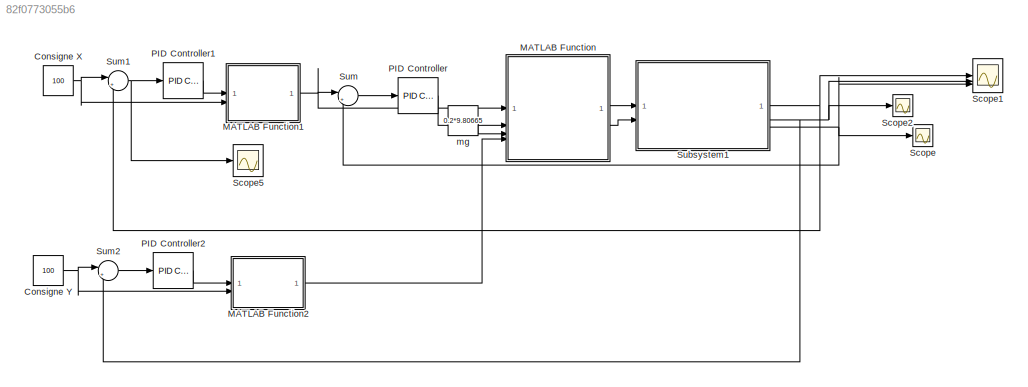
MODEL slx_82f0773055b6
KIND model
CONFIG AbsTol = 1e-3
CONFIG EnableMultiTasking = on
CONFIG FixedStep = auto
CONFIG MaxStep = auto
CONFIG MinStep = auto
CONFIG RelTol = 1e-3
CONFIG SampleTimeConstraint = Unconstrained
CONFIG SolverName = VariableStepAuto
CONFIG StartTime = 0.0
CONFIG StopTime = 60
BLOCK [Constant] Consigne X
  Value = 100
BLOCK [Constant] Consigne Y
  Value = 100
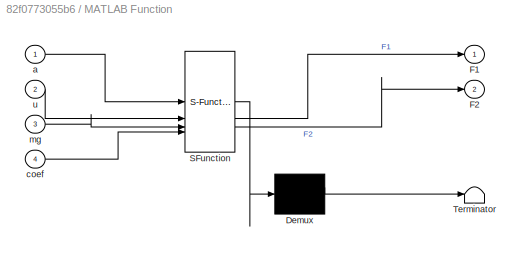
BLOCK [SubSystem] MATLAB Function
  ErrorFcn = Stateflow.Translate.translate
  PermitHierarchicalResolution = ExplicitOnly
  SFBlockType = MATLAB Function
  TreatAsAtomicUnit = on
BLOCK [Demux] MATLAB Function/ Demux 
  Outputs = 1
BLOCK [S-Function] MATLAB Function/ SFunction 
  EnableBusSupport = on
  FunctionName = sf_sfun
  PortCounts = [4 3]
  SFcnIsStateOwnerBlock = off
  SFunctionDeploymentMode = off
  Tag = Stateflow S-Function 2
BLOCK [Terminator] MATLAB Function/ Terminator 
BLOCK [Outport] MATLAB Function/F1
BLOCK [Outport] MATLAB Function/F2
  Port = 2
BLOCK [Inport] MATLAB Function/a
BLOCK [Inport] MATLAB Function/coef
  Port = 4
BLOCK [Inport] MATLAB Function/mg
  Port = 3
BLOCK [Inport] MATLAB Function/u
  Port = 2
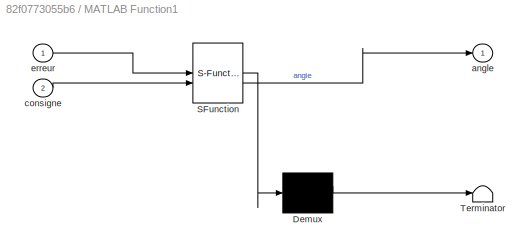
BLOCK [SubSystem] MATLAB Function1
  ErrorFcn = Stateflow.Translate.translate
  PermitHierarchicalResolution = ExplicitOnly
  SFBlockType = MATLAB Function
  TreatAsAtomicUnit = on
BLOCK [Demux] MATLAB Function1/ Demux 
  Outputs = 1
BLOCK [S-Function] MATLAB Function1/ SFunction 
  EnableBusSupport = on
  FunctionName = sf_sfun
  PortCounts = [2 2]
  SFcnIsStateOwnerBlock = off
  SFunctionDeploymentMode = off
  Tag = Stateflow S-Function 1
BLOCK [Terminator] MATLAB Function1/ Terminator 
BLOCK [Outport] MATLAB Function1/angle
BLOCK [Inport] MATLAB Function1/consigne
  Port = 2
BLOCK [Inport] MATLAB Function1/erreur
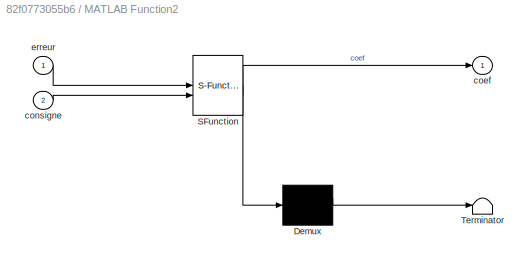
BLOCK [SubSystem] MATLAB Function2
  ErrorFcn = Stateflow.Translate.translate
  PermitHierarchicalResolution = ExplicitOnly
  SFBlockType = MATLAB Function
  TreatAsAtomicUnit = on
BLOCK [Demux] MATLAB Function2/ Demux 
  Outputs = 1
BLOCK [S-Function] MATLAB Function2/ SFunction 
  EnableBusSupport = on
  FunctionName = sf_sfun
  PortCounts = [2 2]
  SFcnIsStateOwnerBlock = off
  SFunctionDeploymentMode = off
  Tag = Stateflow S-Function 3
BLOCK [Terminator] MATLAB Function2/ Terminator 
BLOCK [Outport] MATLAB Function2/coef
BLOCK [Inport] MATLAB Function2/consigne
  Port = 2
BLOCK [Inport] MATLAB Function2/erreur
BLOCK [Reference] PID Controller  REF=slpidlib/PID Controller
  LibrarySourceBlock = simulink/Continuous/PID Controller
  SourceBlock = slpidlib/PID Controller
  SourceType = PID 1dof
BLOCK [Reference] PID Controller1  REF=slpidlib/PID Controller
  LibrarySourceBlock = simulink/Continuous/PID Controller
  SourceBlock = slpidlib/PID Controller
  SourceType = PID 1dof
BLOCK [Reference] PID Controller2  REF=slpidlib/PID Controller
  LibrarySourceBlock = simulink/Continuous/PID Controller
  SourceBlock = slpidlib/PID Controller
  SourceType = PID 1dof
BLOCK [Scope] Scope
  Floating = off
  NumInputPorts = 1
  ScopeSpecificationString = Simulink.scopes.TimeScopeBlockCfg('CurrentConfiguration', extmgr.ConfigurationSet(extmgr.Configuration('Core','General UI',true),extmgr.Configuration('Core','Source UI',true),extmgr.Configuration('Sources','WiredSimulink',true),extmgr.Configuration('Visuals','Time Domain',true,'SerializedDisplays',{struct('MinYLimReal','-0.19937','MaxYLimReal','1.79437','YLabelReal','','MinYLimMag','0.00000','MaxY...<+1505ch>
BLOCK [Scope] Scope1
  Floating = off
  NumInputPorts = 3
  ScopeSpecificationString = Simulink.scopes.TimeScopeBlockCfg('CurrentConfiguration', extmgr.ConfigurationSet(extmgr.Configuration('Core','General UI',true),extmgr.Configuration('Core','Source UI',true),extmgr.Configuration('Sources','WiredSimulink',true,'DataLoggingVariableName','ScopeData1'),extmgr.Configuration('Visuals','Time Domain',true,'SerializedDisplays',{struct('MinYLimReal','-28.29286','MaxYLimReal','114.24409','Y...<+1650ch>
BLOCK [Scope] Scope2
  Floating = off
  NumInputPorts = 1
  ScopeSpecificationString = Simulink.scopes.TimeScopeBlockCfg('CurrentConfiguration', extmgr.ConfigurationSet(extmgr.Configuration('Core','General UI',true),extmgr.Configuration('Core','Source UI',true),extmgr.Configuration('Sources','WiredSimulink',true,'DataLoggingVariableName','ScopeData1'),extmgr.Configuration('Visuals','Time Domain',true,'SerializedDisplays',{struct('MinYLimReal','-0.11723','MaxYLimReal','1.023','YLabel...<+1822ch>
BLOCK [Scope] Scope5
  Floating = off
  NumInputPorts = 1
  ScopeSpecificationString = Simulink.scopes.TimeScopeBlockCfg('CurrentConfiguration', extmgr.ConfigurationSet(extmgr.Configuration('Core','General UI',true),extmgr.Configuration('Core','Source UI',true),extmgr.Configuration('Sources','WiredSimulink',true,'DataLoggingVariableName','ScopeData2'),extmgr.Configuration('Visuals','Time Domain',true,'SerializedDisplays',{struct('MinYLimReal','-1672.95291','MaxYLimReal','196.99568',...<+1597ch>
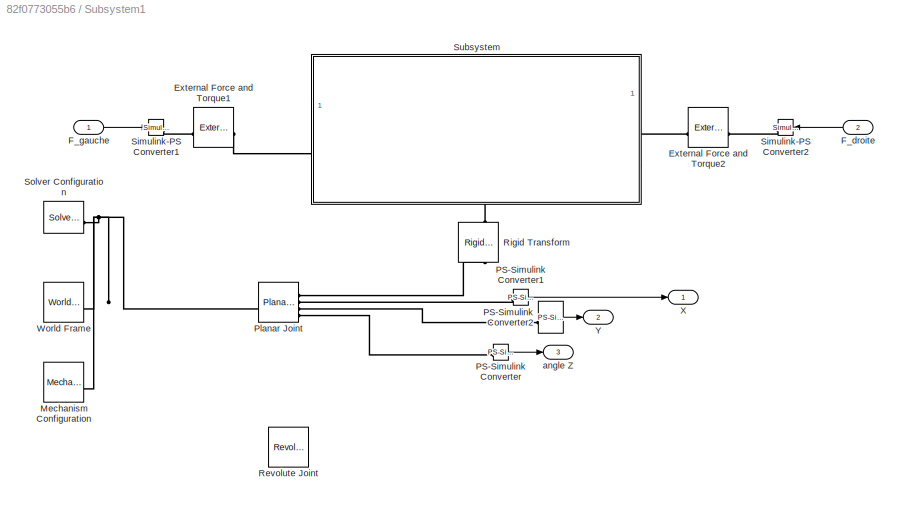
BLOCK [SubSystem] Subsystem1
BLOCK [Reference] Subsystem1/External Force and Torque1  REF=sm_lib/Forces and
Torques/External Force
and Torque
  SourceBlock = sm_lib/Forces and\nTorques/External Force\nand Torque
  SourceType = External Force\nand Torque
BLOCK [Reference] Subsystem1/External Force and Torque2  REF=sm_lib/Forces and
Torques/External Force
and Torque
  SourceBlock = sm_lib/Forces and\nTorques/External Force\nand Torque
  SourceType = External Force\nand Torque
BLOCK [Inport] Subsystem1/F_droite
  Port = 2
BLOCK [Inport] Subsystem1/F_gauche
BLOCK [Reference] Subsystem1/Mechanism Configuration  REF=sm_lib/Utilities/Mechanism
Configuration
  SourceBlock = sm_lib/Utilities/Mechanism\nConfiguration
  SourceType = Mechanism\nConfiguration
BLOCK [Reference] Subsystem1/PS-Simulink Converter  REF=nesl_utility/PS-Simulink
Converter
  SourceBlock = nesl_utility/PS-Simulink\nConverter
  SourceType = PS-Simulink\nConverter
BLOCK [Reference] Subsystem1/PS-Simulink Converter1  REF=nesl_utility/PS-Simulink
Converter
  SourceBlock = nesl_utility/PS-Simulink\nConverter
  SourceType = PS-Simulink\nConverter
BLOCK [Reference] Subsystem1/PS-Simulink Converter2  REF=nesl_utility/PS-Simulink
Converter
  SourceBlock = nesl_utility/PS-Simulink\nConverter
  SourceType = PS-Simulink\nConverter
BLOCK [Reference] Subsystem1/Planar Joint  REF=sm_lib/Joints/Planar Joint
  SourceBlock = sm_lib/Joints/Planar Joint
  SourceType = Planar Joint
BLOCK [Reference] Subsystem1/Revolute Joint  REF=sm_lib/Joints/Revolute Joint
  Commented = on
  SourceBlock = sm_lib/Joints/Revolute Joint
  SourceType = Revolute Joint
BLOCK [Reference] Subsystem1/Rigid Transform  REF=sm_lib/Frames and
Transforms/Rigid
Transform
  NameLocation = right
  SourceBlock = sm_lib/Frames and\nTransforms/Rigid\nTransform
  SourceType = Rigid\nTransform
BLOCK [Reference] Subsystem1/Simulink-PS Converter1  REF=nesl_utility/Simulink-PS
Converter
  SourceBlock = nesl_utility/Simulink-PS\nConverter
  SourceType = Simulink-PS\nConverter
BLOCK [Reference] Subsystem1/Simulink-PS Converter2  REF=nesl_utility/Simulink-PS
Converter
  SourceBlock = nesl_utility/Simulink-PS\nConverter
  SourceType = Simulink-PS\nConverter
BLOCK [Reference] Subsystem1/Solver Configuration  REF=nesl_utility/Solver
Configuration
  SourceBlock = nesl_utility/Solver\nConfiguration
  SourceType = Solver\nConfiguration
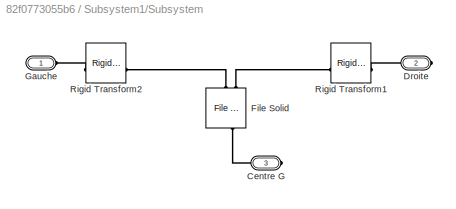
BLOCK [SubSystem] Subsystem1/Subsystem
  PortSchema = {"entries":[{"content":{"sides":[{"content":{"connectorIds":["LConn1"]},"type":"ConnectorPlacement.EquallySpacedRectSide","uuid":"4e6eadbb-0fa2-4fa1-8398-65010395ec03"},{"content":{"connectorIds":["RConn1"],"side":"RIGHT"},"type":"ConnectorPlacement.EquallySpacedRectSide","uuid":"83dee805-4883-4947-adf2-1c0e53e04d8d"},{"content":{"side":"TOP"},"type":"ConnectorPlacement.EquallySpacedRectSide","uui...<+379ch>
BLOCK [PMIOPort] Subsystem1/Subsystem/Centre G
  Port = 3
  Side = Right
BLOCK [PMIOPort] Subsystem1/Subsystem/Droite
  Port = 2
  Side = Right
BLOCK [Reference] Subsystem1/Subsystem/File Solid  REF=sm_lib/Body Elements/File Solid
  NameLocation = right
  SourceBlock = sm_lib/Body Elements/File Solid
  SourceType = File Solid
BLOCK [PMIOPort] Subsystem1/Subsystem/Gauche
  Side = Left
BLOCK [Reference] Subsystem1/Subsystem/Rigid Transform1  REF=sm_lib/Frames and
Transforms/Rigid
Transform
  NameLocation = top
  SourceBlock = sm_lib/Frames and\nTransforms/Rigid\nTransform
  SourceType = Rigid\nTransform
BLOCK [Reference] Subsystem1/Subsystem/Rigid Transform2  REF=sm_lib/Frames and
Transforms/Rigid
Transform
  SourceBlock = sm_lib/Frames and\nTransforms/Rigid\nTransform
  SourceType = Rigid\nTransform
BLOCK [Reference] Subsystem1/World Frame  REF=sm_lib/Frames and
Transforms/World Frame
  SourceBlock = sm_lib/Frames and\nTransforms/World Frame
  SourceType = World Frame
BLOCK [Outport] Subsystem1/X
BLOCK [Outport] Subsystem1/Y
  Port = 2
BLOCK [Outport] Subsystem1/angle Z
  Port = 3
BLOCK [Sum] Sum
  Inputs = |+-
BLOCK [Sum] Sum1
  Inputs = |+-
BLOCK [Sum] Sum2
  Inputs = |+-
BLOCK [Constant] mg
  Value = 0.2*9.80665
NET Consigne X:1 -> MATLAB Function1:2, Sum1:1
NET Consigne Y:1 -> MATLAB Function2:2, Sum2:1
NET MATLAB Function1:1 -> MATLAB Function:1, Sum:1
LINE MATLAB Function2:1 -> MATLAB Function:4
LINE MATLAB Function:1 -> Subsystem1:1
LINE MATLAB Function:2 -> Subsystem1:2
LINE PID Controller1:1 -> MATLAB Function1:1
LINE PID Controller2:1 -> MATLAB Function2:1
LINE PID Controller:1 -> MATLAB Function:2
LINE Subsystem1/F_droite:1 -> Subsystem1/Simulink-PS Converter2:1
LINE Subsystem1/F_gauche:1 -> Subsystem1/Simulink-PS Converter1:1
LINE Subsystem1/PS-Simulink Converter1:1 -> Subsystem1/X:1
LINE Subsystem1/PS-Simulink Converter2:1 -> Subsystem1/Y:1
LINE Subsystem1/PS-Simulink Converter:1 -> Subsystem1/angle Z:1
NET Subsystem1:1 -> Scope1:1, Sum1:2
NET Subsystem1:2 -> Scope1:2, Scope2:1, Sum2:2
NET Subsystem1:3 -> Scope1:3, Scope:1, Sum:2
NET Sum1:1 -> PID Controller1:1, Scope5:1
LINE Sum2:1 -> PID Controller2:1
LINE Sum:1 -> PID Controller:1
LINE mg:1 -> MATLAB Function:3
PLINE Subsystem1/External Force and Torque1:LConn1 -- Subsystem1/Simulink-PS Converter1:RConn1
PLINE Subsystem1/External Force and Torque1:RConn1 -- Subsystem1/Subsystem:LConn1
PLINE Subsystem1/External Force and Torque2:LConn1 -- Subsystem1/Simulink-PS Converter2:RConn1
PLINE Subsystem1/External Force and Torque2:RConn1 -- Subsystem1/Subsystem:RConn1
PNET net1: Subsystem1/Mechanism Configuration:RConn1 -- Subsystem1/Planar Joint:LConn1 -- Subsystem1/Solver Configuration:RConn1 -- Subsystem1/World Frame:RConn1
PLINE Subsystem1/PS-Simulink Converter1:LConn1 -- Subsystem1/Planar Joint:RConn2
PLINE Subsystem1/PS-Simulink Converter2:LConn1 -- Subsystem1/Planar Joint:RConn3
PLINE Subsystem1/PS-Simulink Converter:LConn1 -- Subsystem1/Planar Joint:RConn4
PLINE Subsystem1/Planar Joint:RConn1 -- Subsystem1/Rigid Transform:LConn1
PLINE Subsystem1/Rigid Transform:RConn1 -- Subsystem1/Subsystem:RConn2
PLINE Subsystem1/Subsystem/Centre G:RConn1 -- Subsystem1/Subsystem/File Solid:RConn1
PLINE Subsystem1/Subsystem/Droite:RConn1 -- Subsystem1/Subsystem/Rigid Transform1:LConn1
PLINE Subsystem1/Subsystem/File Solid:LConn1 -- Subsystem1/Subsystem/Rigid Transform2:RConn1
PLINE Subsystem1/Subsystem/File Solid:LConn2 -- Subsystem1/Subsystem/Rigid Transform1:RConn1
PLINE Subsystem1/Subsystem/Gauche:RConn1 -- Subsystem1/Subsystem/Rigid Transform2:LConn1
note: NET lines group one-source signal fan-out (src -> all destinations, sorted); 1:1 wires keep LINE; PNET lines group multi-terminal physical nets as a canonical sorted terminal list (undirected conserving connections); 2-terminal nets keep the pairwise PLINE form
CHART MATLAB Function1 states=1 transitions=1
  STATE_LABEL 'eML_blk_kernel()'
  STATE_LABEL "SCRIPT:\nfunction angle = fcn(erreur , consigne)\nD = consigne - erreur; % D est la distance qui à été parcouru. Notons que l'érreur tend vers zéro\nangle = 0; % Initialisation de l'angle à 0; si l'on n'effectue aucune modification l'angle en sortie reste à zéro\nif D == consigne % Si la distance parcouru = consigne alors commande est atteint on ramène l'angle à 0\n    angle = 0;\nend\nif D < 0 % Conditi...<+529ch>"
CHART MATLAB Function states=1 transitions=1
  STATE_LABEL 'eML_blk_kernel()'
  STATE_LABEL "SCRIPT:\nfunction [F1 , F2] = fcn(a , u , mg , coef)\n% a : l'angle du drone\n% u = F1 - F2\n% mg = F1 + F2\n\nF1 = (mg+u)/( 2*(abs(cos(a)) )  );\nF2 = (mg-u)/(2*(abs(cos(a)) ) );\n\nF1 = coef*F1 ;\nF2 = coef*F2;"
CHART MATLAB Function2 states=1 transitions=1
  STATE_LABEL 'eML_blk_kernel()'
  STATE_LABEL 'SCRIPT:\nfunction coef = fcn(erreur , consigne)\nD = consigne - erreur;\ncoef = 1;\nif D == consigne\n    coef = 1;\nend\nif D < 0 \n    coef = 1 - 0.00001*D;\n    if  coef < (1/4)\n        coef = (1/4);\n    end\nend\nif D > 0 \n    coef = 1 + 0.00001*D ;\n    if  coef > (3/4)\n        coef = (3/4);\n    end\nend\n'
CHART  states=0 transitions=0
CHART  states=0 transitions=0
CHART  states=0 transitions=0
